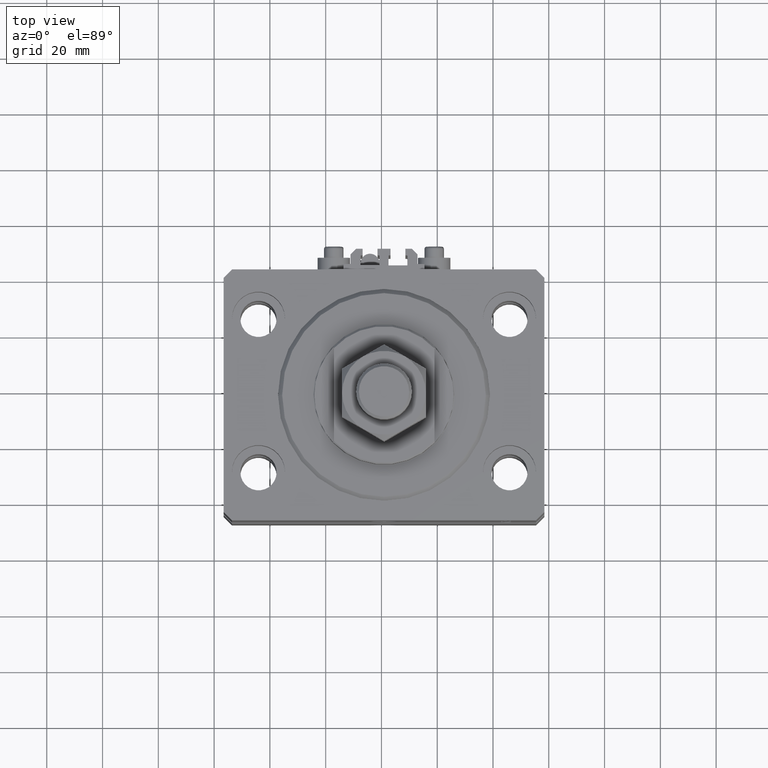
[diagram: clean part render]
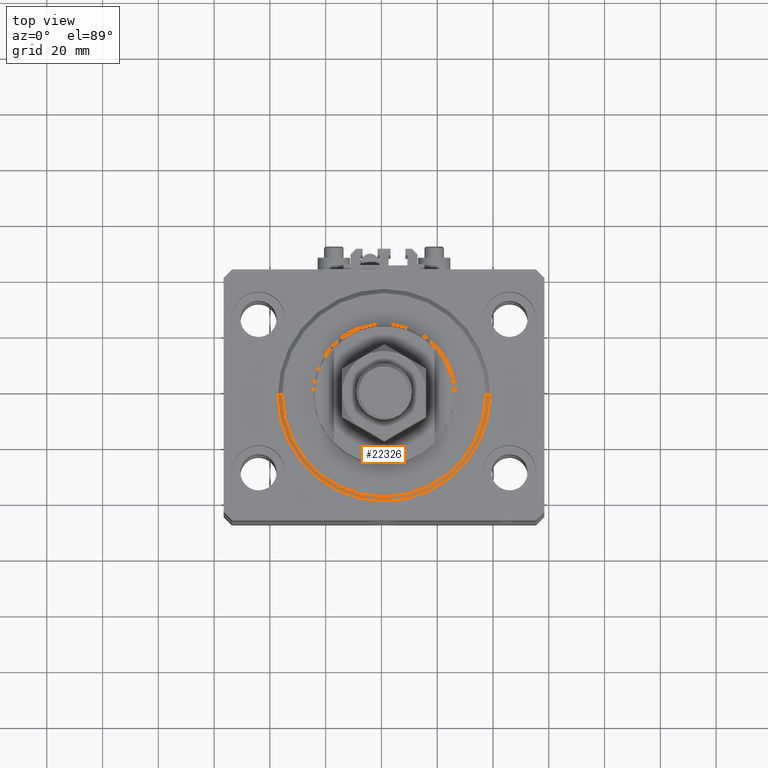
[diagram: same view with one face highlighted and labeled with its STEP entity id]
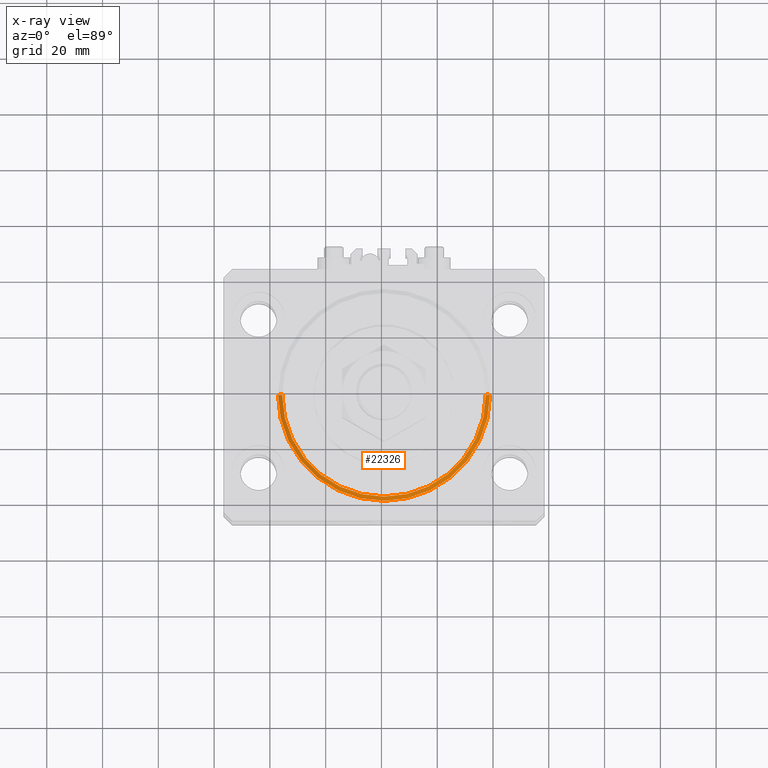
[diagram: x-ray of the same camera — body ghosted, the highlighted face saturated]
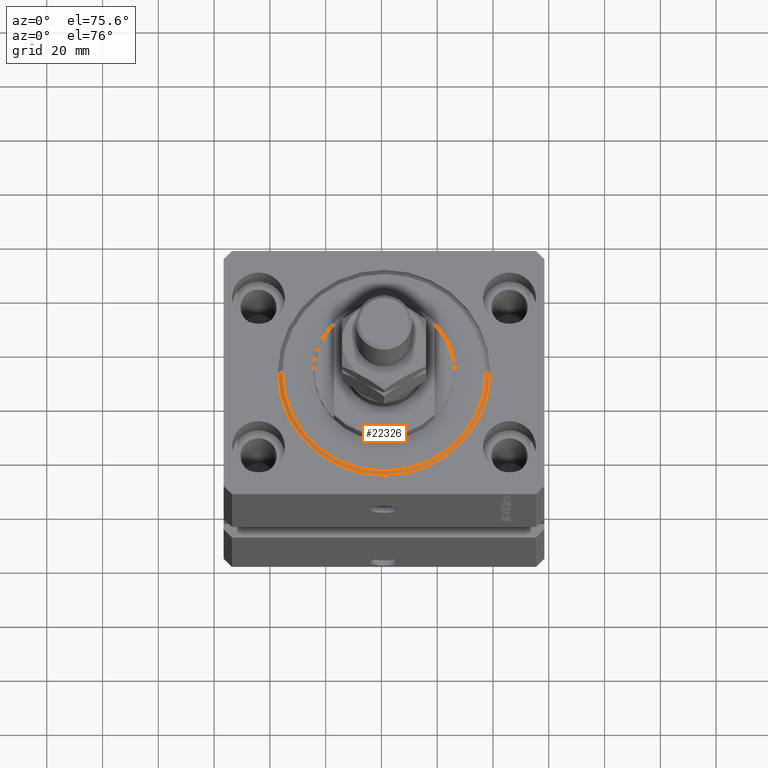
[diagram: same view with one face highlighted and labeled with its STEP entity id]
A machine part, top view. The second image highlights one B-rep face of the part: STEP entity #22326.
The next image is the same camera in x-ray: the body ghosted, the highlighted face saturated — about 0% of this face is hidden behind the body in this view.
A second angle (auxiliary view) of the same face is appended — the face is thin or edge-on in the first view.
In plain terms, the highlighted conical surface has half-angle 45 deg.
Its self-contained STEP definition (entity closure, byte-faithful):
#1265 = LINE ( 'NONE', #13142, #6317 ) ;
#2044 = EDGE_CURVE ( 'NONE', #39811, #20823, #20407, .T. ) ;
#2211 = VERTEX_POINT ( 'NONE', #35897 ) ;
#6317 = VECTOR ( 'NONE', #16511, 1000.000000000000114 ) ;
#7141 = CONICAL_SURFACE ( 'NONE', #36841, 38.00000000000000000, 0.7853981633974529419 ) ;
#7355 = EDGE_LOOP ( 'NONE', ( #25968, #25783, #49068, #12314 ) ) ;
#7619 = FACE_OUTER_BOUND ( 'NONE', #7355, .T. ) ;
#9645 = CIRCLE ( 'NONE', #22842, 38.00000000000000000 ) ;
#10974 = CARTESIAN_POINT ( 'NONE',  ( 0.000000000000000000, 0.000000000000000000, 1.499999999999987566 ) ) ;
#12314 = ORIENTED_EDGE ( 'NONE', *, *, #31811, .F. ) ;
#13142 = CARTESIAN_POINT ( 'NONE',  ( 38.00000000000000000, 0.000000000000000000, 1.499999999999987566 ) ) ;
#13638 = LINE ( 'NONE', #38916, #13702 ) ;
#13702 = VECTOR ( 'NONE', #46394, 1000.000000000000114 ) ;
#14736 = DIRECTION ( 'NONE',  ( 1.000000000000000000, 0.000000000000000000, 0.000000000000000000 ) ) ;
#16511 = DIRECTION ( 'NONE',  ( 0.7071067811865507924, 0.000000000000000000, 0.7071067811865441310 ) ) ;
#18997 = DIRECTION ( 'NONE',  ( -0.000000000000000000, -0.000000000000000000, 1.000000000000000000 ) ) ;
#20407 = CIRCLE ( 'NONE', #49238, 36.50000000000000000 ) ;
#20823 = VERTEX_POINT ( 'NONE', #31139 ) ;
#22326 = ADVANCED_FACE ( 'NONE', ( #7619 ), #7141, .T. ) ;
#22842 = AXIS2_PLACEMENT_3D ( 'NONE', #30577, #31594, #35217 ) ;
#23187 = VERTEX_POINT ( 'NONE', #25752 ) ;
#25752 = CARTESIAN_POINT ( 'NONE',  ( 38.00000000000000000, 4.653657836759941941E-15, 1.499999999999987566 ) ) ;
#25783 = ORIENTED_EDGE ( 'NONE', *, *, #2044, .F. ) ;
#25968 = ORIENTED_EDGE ( 'NONE', *, *, #29343, .F. ) ;
#29343 = EDGE_CURVE ( 'NONE', #20823, #2211, #13638, .T. ) ;
#30085 = EDGE_CURVE ( 'NONE', #39811, #23187, #1265, .T. ) ;
#30577 = CARTESIAN_POINT ( 'NONE',  ( 0.000000000000000000, 0.000000000000000000, 1.499999999999987566 ) ) ;
#31139 = CARTESIAN_POINT ( 'NONE',  ( -36.50000000000000000, 4.561809326823889791E-15, 0.000000000000000000 ) ) ;
#31502 = CARTESIAN_POINT ( 'NONE',  ( 36.50000000000000000, 0.000000000000000000, 0.000000000000000000 ) ) ;
#31594 = DIRECTION ( 'NONE',  ( -0.000000000000000000, -0.000000000000000000, 1.000000000000000000 ) ) ;
#31811 = EDGE_CURVE ( 'NONE', #2211, #23187, #9645, .T. ) ;
#35217 = DIRECTION ( 'NONE',  ( 1.000000000000000000, 0.000000000000000000, 0.000000000000000000 ) ) ;
#35897 = CARTESIAN_POINT ( 'NONE',  ( -38.00000000000000000, 0.000000000000000000, 1.499999999999987566 ) ) ;
#36841 = AXIS2_PLACEMENT_3D ( 'NONE', #10974, #18997, #46601 ) ;
#38741 = CARTESIAN_POINT ( 'NONE',  ( 0.000000000000000000, 0.000000000000000000, 0.000000000000000000 ) ) ;
#38916 = CARTESIAN_POINT ( 'NONE',  ( -38.00000000000000000, 4.653657836759941152E-15, 1.499999999999987566 ) ) ;
#39811 = VERTEX_POINT ( 'NONE', #31502 ) ;
#42854 = DIRECTION ( 'NONE',  ( -0.000000000000000000, -0.000000000000000000, -1.000000000000000000 ) ) ;
#46394 = DIRECTION ( 'NONE',  ( -0.7071067811865507924, 8.659560562354972301E-17, 0.7071067811865441310 ) ) ;
#46601 = DIRECTION ( 'NONE',  ( 1.000000000000000000, 0.000000000000000000, 0.000000000000000000 ) ) ;
#49068 = ORIENTED_EDGE ( 'NONE', *, *, #30085, .T. ) ;
#49238 = AXIS2_PLACEMENT_3D ( 'NONE', #38741, #42854, #14736 ) ;